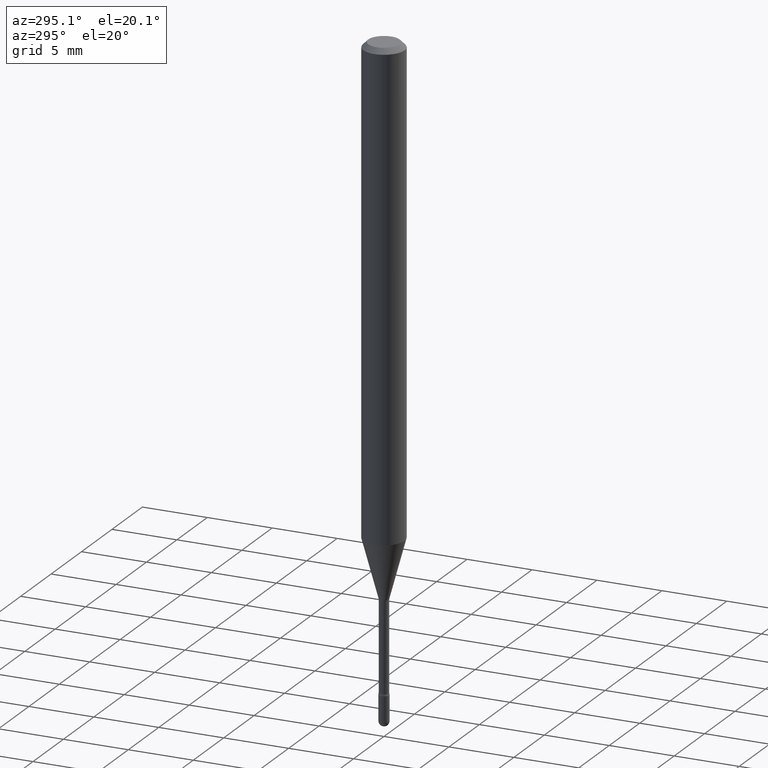
[diagram: clean part render]
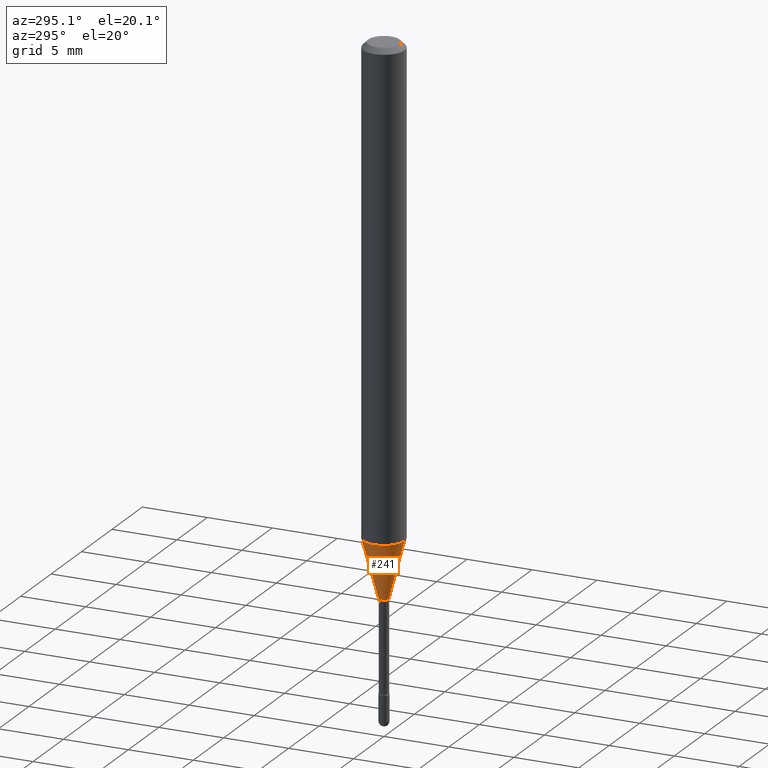
[diagram: same view with one face highlighted and labeled with its STEP entity id]
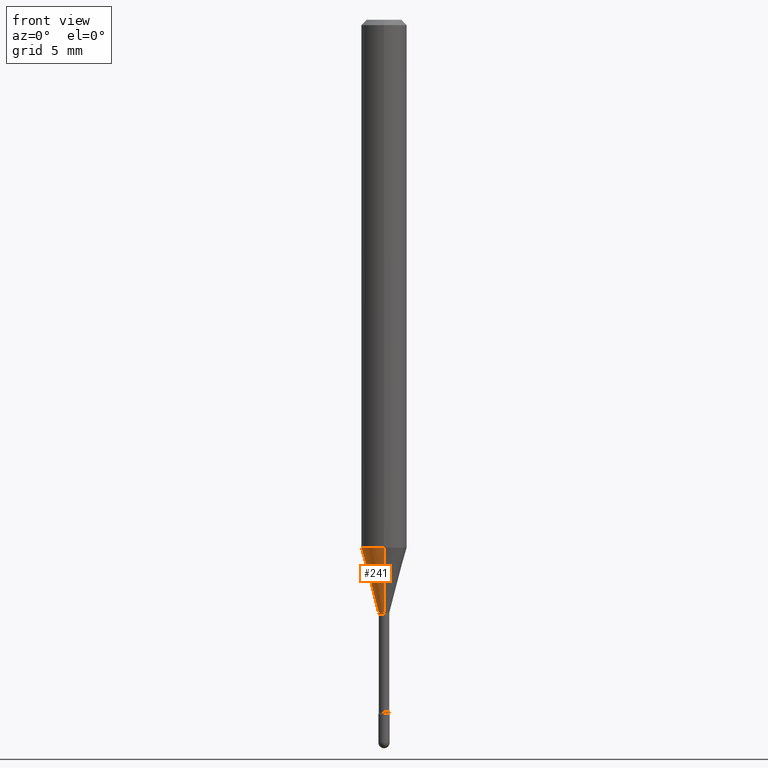
[diagram: same view with one face highlighted and labeled with its STEP entity id]
A machine part, auxiliary view. The second image highlights one B-rep face of the part: STEP entity #241.
A second angle (front view) of the same face is appended — the face is thin or edge-on in the first view.
In plain terms, the highlighted conical surface has half-angle 15 deg.
Its self-contained STEP definition (entity closure, byte-faithful):
#10 = CARTESIAN_POINT ( 'NONE',  ( 4.440892098500978191E-16, 0.06249999999999492073, -1.449048163777072906 ) ) ;
#12 = CARTESIAN_POINT ( 'NONE',  ( 2.755524256971659993E-16, 0.01506111260565827503, -1.626092501787273159 ) ) ;
#23 = EDGE_CURVE ( 'NONE', #342, #36, #215, .T. ) ;
#36 = VERTEX_POINT ( 'NONE', #514 ) ;
#57 = CIRCLE ( 'NONE', #333, 0.06250000000000000000 ) ;
#71 = FACE_OUTER_BOUND ( 'NONE', #525, .T. ) ;
#75 = VERTEX_POINT ( 'NONE', #10 ) ;
#78 = AXIS2_PLACEMENT_3D ( 'NONE', #164, #283, #457 ) ;
#93 = DIRECTION ( 'NONE',  ( -6.982962677686265922E-15, -1.000000000000000000, 4.370956789862821150E-15 ) ) ;
#114 = CARTESIAN_POINT ( 'NONE',  ( -4.364351673553563186E-16, -0.06250000000000507927, -1.449048163777072240 ) ) ;
#127 = VECTOR ( 'NONE', #159, 39.37007874015748854 ) ;
#147 = DIRECTION ( 'NONE',  ( -2.445463809477115105E-29, 3.491488494413427226E-15, 1.000000000000000000 ) ) ;
#159 = DIRECTION ( 'NONE',  ( -1.807323732225328562E-15, -0.2588190451025179639, 0.9659258262890690894 ) ) ;
#160 = VERTEX_POINT ( 'NONE', #114 ) ;
#164 = CARTESIAN_POINT ( 'NONE',  ( 3.976550363982877177E-29, -5.677483260842208723E-15, -1.626092501787273159 ) ) ;
#176 = VECTOR ( 'NONE', #435, 39.37007874015748854 ) ;
#190 = EDGE_CURVE ( 'NONE', #75, #160, #57, .T. ) ;
#215 = CIRCLE ( 'NONE', #304, 0.01506111260566395105 ) ;
#233 = LINE ( 'NONE', #444, #176 ) ;
#241 = ADVANCED_FACE ( 'NONE', ( #71 ), #493, .T. ) ;
#267 = CARTESIAN_POINT ( 'NONE',  ( 3.543594842706099402E-29, -5.059334991678553225E-15, -1.449048163777072684 ) ) ;
#282 = ORIENTED_EDGE ( 'NONE', *, *, #23, .T. ) ;
#283 = DIRECTION ( 'NONE',  ( -2.445463809477115105E-29, 3.491488494413427226E-15, 1.000000000000000000 ) ) ;
#303 = ORIENTED_EDGE ( 'NONE', *, *, #190, .F. ) ;
#304 = AXIS2_PLACEMENT_3D ( 'NONE', #424, #337, #384 ) ;
#333 = AXIS2_PLACEMENT_3D ( 'NONE', #267, #147, #93 ) ;
#336 = EDGE_CURVE ( 'NONE', #342, #75, #233, .T. ) ;
#337 = DIRECTION ( 'NONE',  ( -2.445463809477115105E-29, 3.491488494413427226E-15, 1.000000000000000000 ) ) ;
#342 = VERTEX_POINT ( 'NONE', #12 ) ;
#350 = EDGE_CURVE ( 'NONE', #36, #160, #476, .T. ) ;
#384 = DIRECTION ( 'NONE',  ( -6.982962677686265133E-15, -1.000000000000000000, 0.000000000000000000 ) ) ;
#424 = CARTESIAN_POINT ( 'NONE',  ( 3.976550363982877177E-29, -5.677483260842208723E-15, -1.626092501787273159 ) ) ;
#435 = DIRECTION ( 'NONE',  ( 1.839019923739598738E-15, 0.2588190451025247363, 0.9659258262890673130 ) ) ;
#444 = CARTESIAN_POINT ( 'NONE',  ( 1.070156415442336988E-16, 0.01506111260565827330, -1.626092501787273159 ) ) ;
#457 = DIRECTION ( 'NONE',  ( -6.982962677686265133E-15, -1.000000000000000000, 0.000000000000000000 ) ) ;
#466 = ORIENTED_EDGE ( 'NONE', *, *, #350, .T. ) ;
#476 = LINE ( 'NONE', #547, #127 ) ;
#493 = CONICAL_SURFACE ( 'NONE', #78, 0.01506111260566395105, 0.2617993877991500740 ) ;
#509 = ORIENTED_EDGE ( 'NONE', *, *, #336, .F. ) ;
#514 = CARTESIAN_POINT ( 'NONE',  ( -1.051711872097417477E-16, -0.01506111260566962880, -1.626092501787273159 ) ) ;
#525 = EDGE_LOOP ( 'NONE', ( #509, #282, #466, #303 ) ) ;
#547 = CARTESIAN_POINT ( 'NONE',  ( -1.051711872097417477E-16, -0.01506111260566962880, -1.626092501787273159 ) ) ;